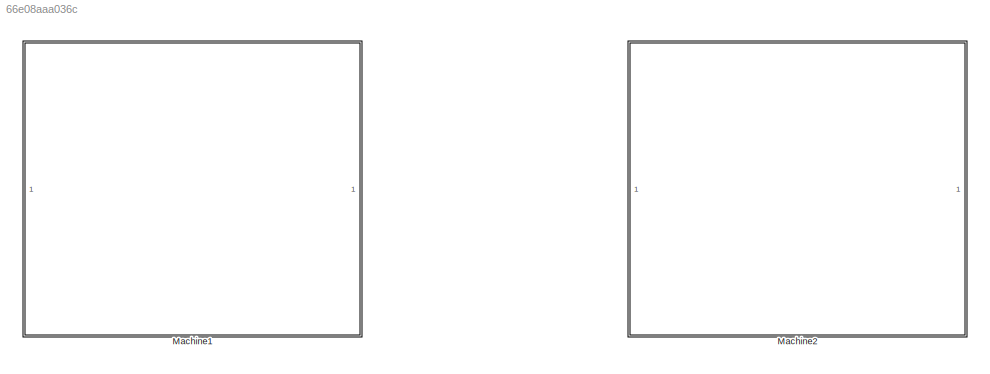
MODEL slx_66e08aaa036c
KIND model
CONFIG AbsTol = auto
CONFIG EnableMultiTasking = off
CONFIG FixedStep = auto
CONFIG MaxStep = auto
CONFIG MinStep = auto
CONFIG RelTol = 1e-3
CONFIG SampleTimeConstraint = Unconstrained
CONFIG SolverName = VariableStepAuto
CONFIG StartTime = 0.0
CONFIG StopTime = 10.0
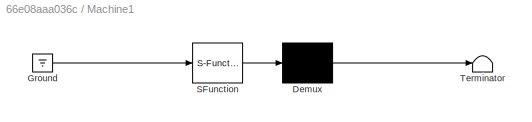
BLOCK [SubSystem] Machine1
  ErrorFcn = Stateflow.Translate.translate
  PermitHierarchicalResolution = ExplicitOnly
  Ports = []
  RequestExecContextInheritance = off
  SFBlockType = Chart
  TreatAsAtomicUnit = on
BLOCK [Demux] Machine1/ Demux 
  Outputs = 1
  Ports = [1, 1]
BLOCK [Ground] Machine1/ Ground 
BLOCK [S-Function] Machine1/ SFunction 
  EnableBusSupport = off
  FunctionName = sf_sfun
  PortCounts = [1 1]
  Ports = [1, 1]
  SFcnIsStateOwnerBlock = off
  SFunctionDeploymentMode = off
  Tag = Stateflow S-Function 3
BLOCK [Terminator] Machine1/ Terminator 
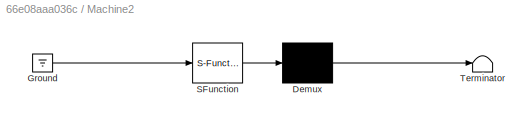
BLOCK [SubSystem] Machine2
  ErrorFcn = Stateflow.Translate.translate
  PermitHierarchicalResolution = ExplicitOnly
  Ports = []
  RequestExecContextInheritance = off
  SFBlockType = Chart
  TreatAsAtomicUnit = on
BLOCK [Demux] Machine2/ Demux 
  Outputs = 1
  Ports = [1, 1]
BLOCK [Ground] Machine2/ Ground 
BLOCK [S-Function] Machine2/ SFunction 
  EnableBusSupport = off
  FunctionName = sf_sfun
  PortCounts = [1 1]
  Ports = [1, 1]
  SFcnIsStateOwnerBlock = off
  SFunctionDeploymentMode = off
  Tag = Stateflow S-Function 1
BLOCK [Terminator] Machine2/ Terminator 
CHART Machine1 states=9 transitions=32
  STATE_LABEL 'I'
  STATE_LABEL 'H\n(Upstream\nEmpty)\n'
  STATE_LABEL 'A'
  STATE_LABEL 'B'
  STATE_LABEL 'C'
  STATE_LABEL 'D'
  STATE_LABEL 'E'
  STATE_LABEL 'F'
  STATE_LABEL 'G'
CHART Machine2 states=6 transitions=20
  STATE_LABEL 'f'
  STATE_LABEL 'e'
  STATE_LABEL 'a'
  STATE_LABEL 'b'
  STATE_LABEL 'c'
  STATE_LABEL 'd'
CHART  states=0 transitions=0
CHART  states=0 transitions=0
